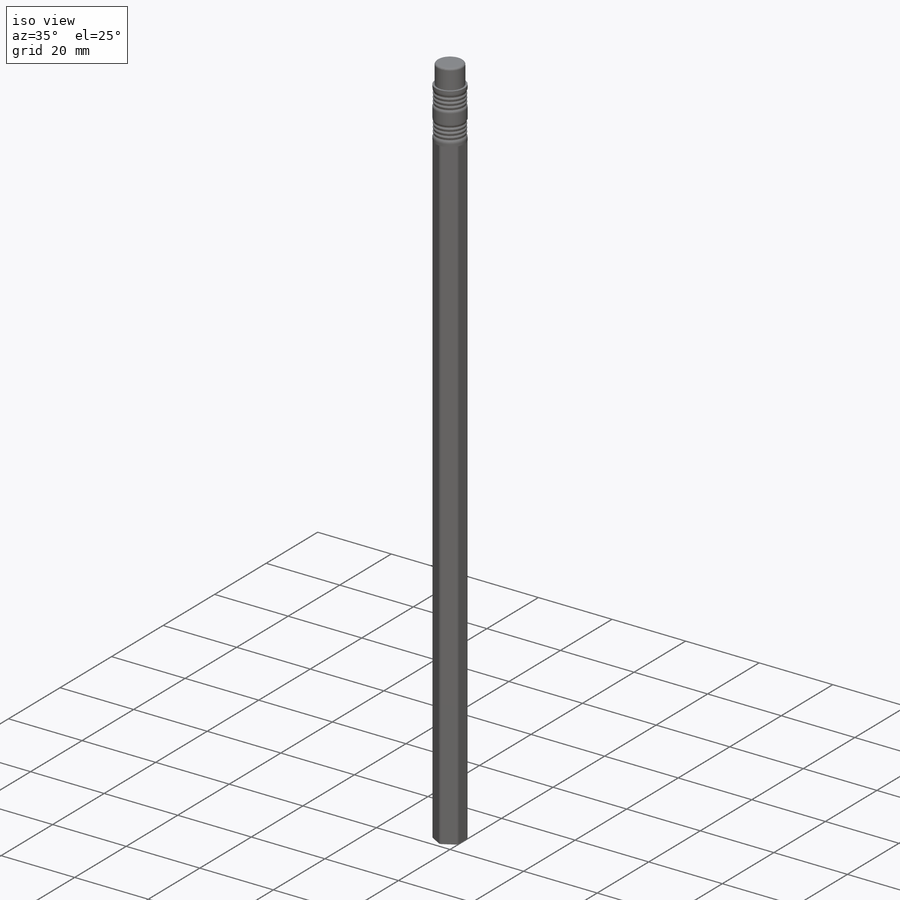
[diagram: iso view]
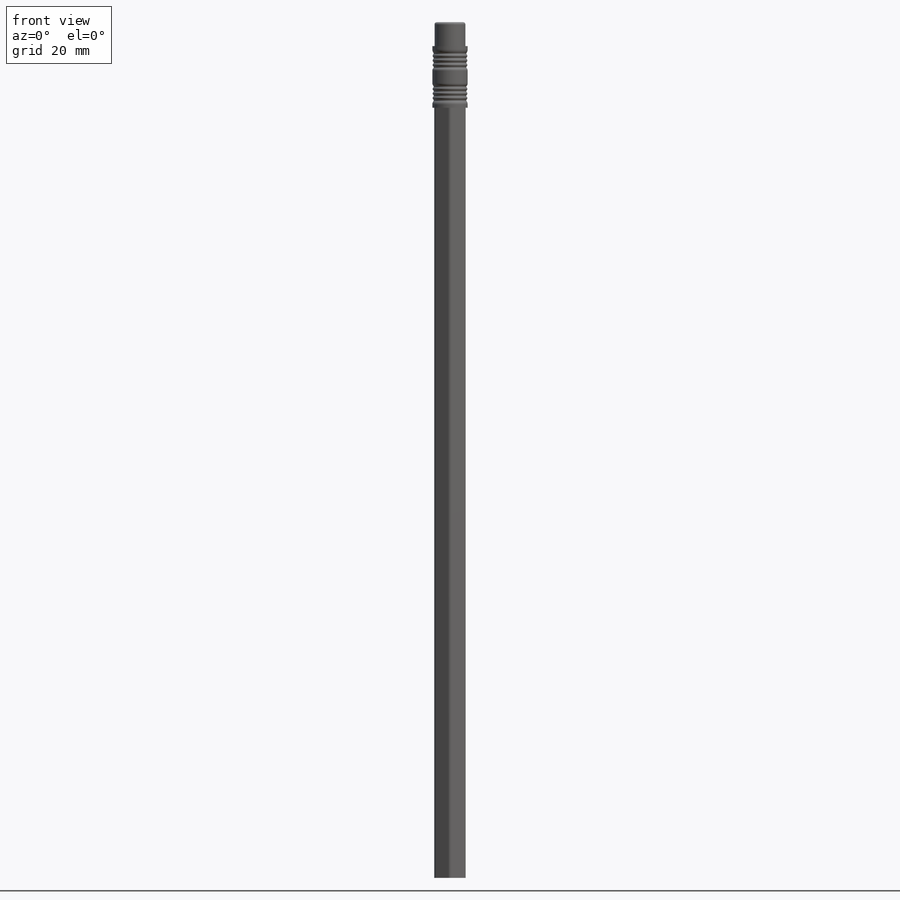
[diagram: front view]
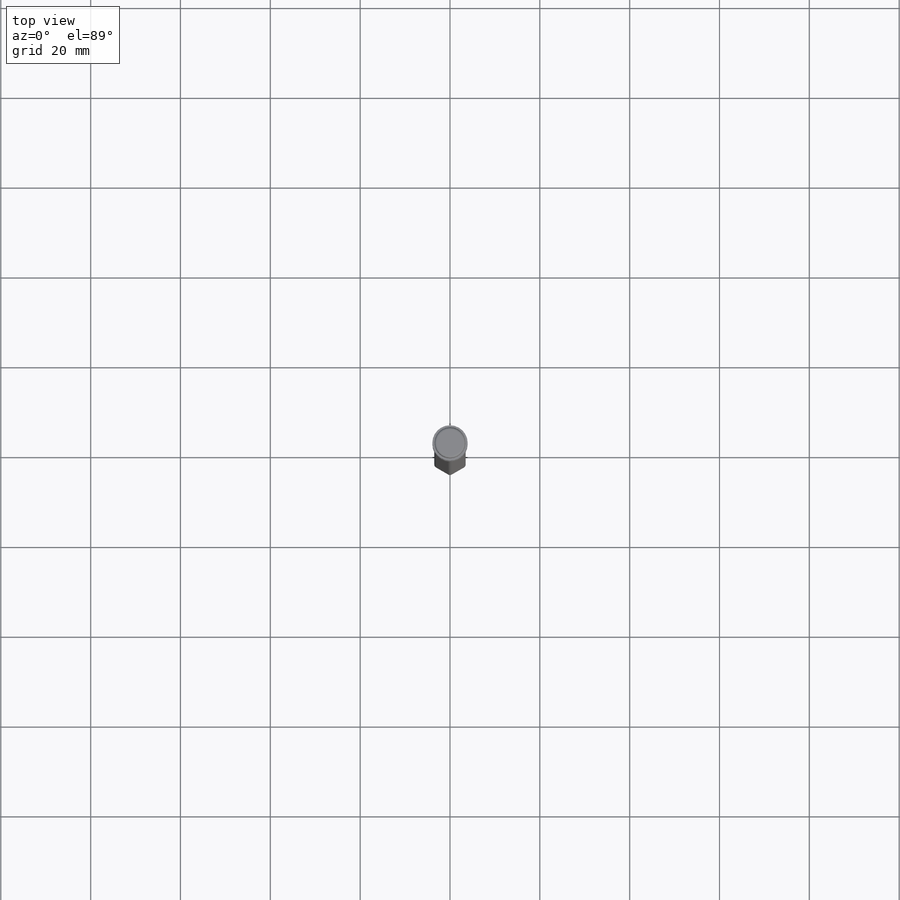
[diagram: top view]
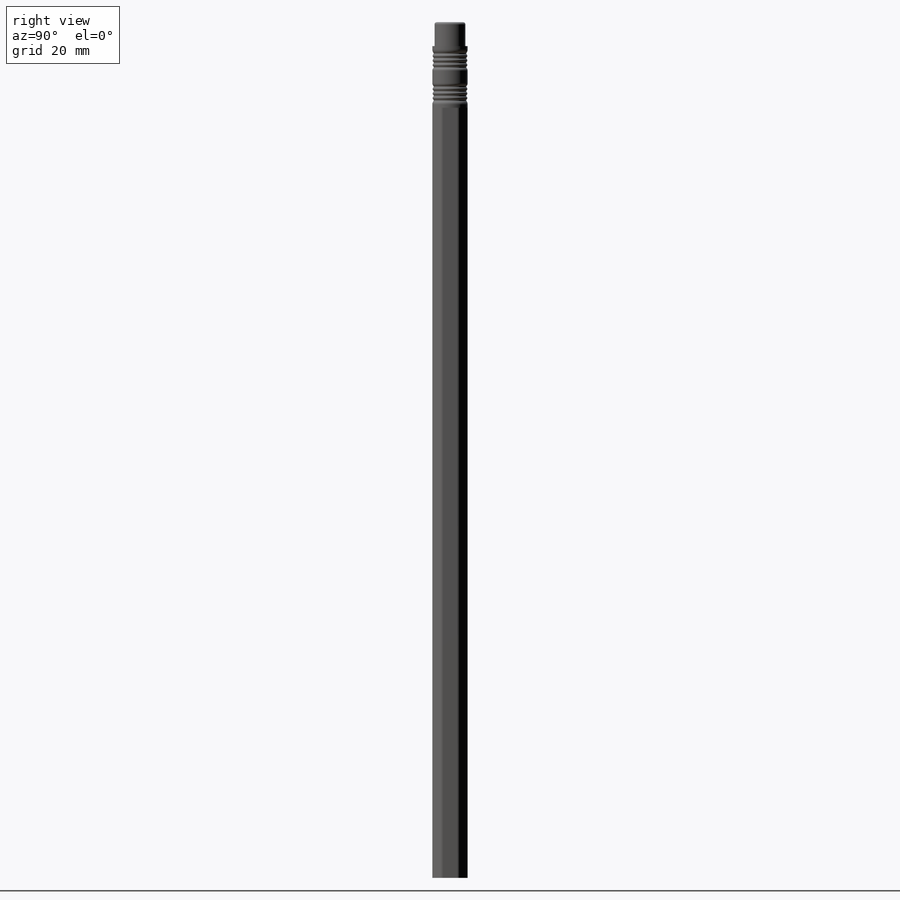
[diagram: right view]
SOLIDWORKS PART (.sldprt)
format: sldprt  version: not decoded by parser v0  size: 406,016 bytes
history: native  units: mm
features: sketch x4, extrude x3, material x1, revolve x1, fillet x1 (+13 scaffold rows collapsed)
feature tree (23):
  scaffold x13  (default folders/planes/origin — collapsed)
  material  "Material <not specified>"
  sketch  "Sketch1"  dims[D1=1.8796mm]
  extrude  "Extrude1"  Depth=177.8mm
  sketch  "Sketch2"  dims[D1=1.905mm D3=0.762mm D2=6.985mm]
  extrude  "Extrude2"  Depth=171.45mm
  sketch  "Sketch3"  dims[D1=0.254mm D2=1.016mm D3=0.2032mm D4=3.937mm D5=~0.02209mm D6=1.524mm D7=13.716mm D8=0.762mm D9=2.794mm D10=0.0762mm]
  revolve  "Revolve1"  Angle=360deg
  sketch  "Sketch4"  dims[D1=6.858mm]
  extrude  "Extrude3"  Depth=12.7mm
  fillet  "Fillet1"  Radius=0.508mm
decode coverage: 9 of 9 modeling features carry decoded parameters
note: ~ marks probable driven/reference dimensions
note: suppression state not decoded; provenance and decode notes live in map.json
